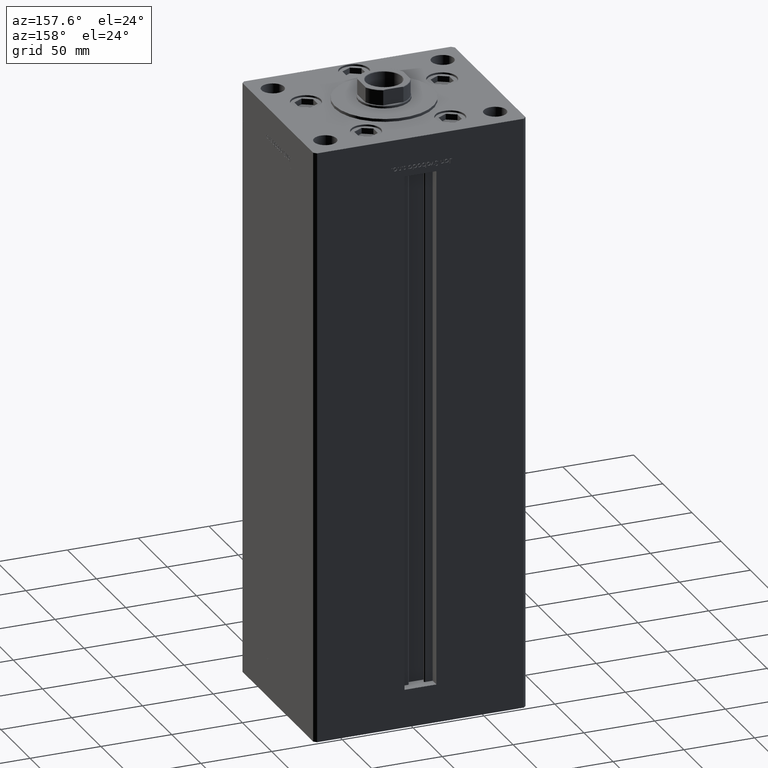
[diagram: clean part render]
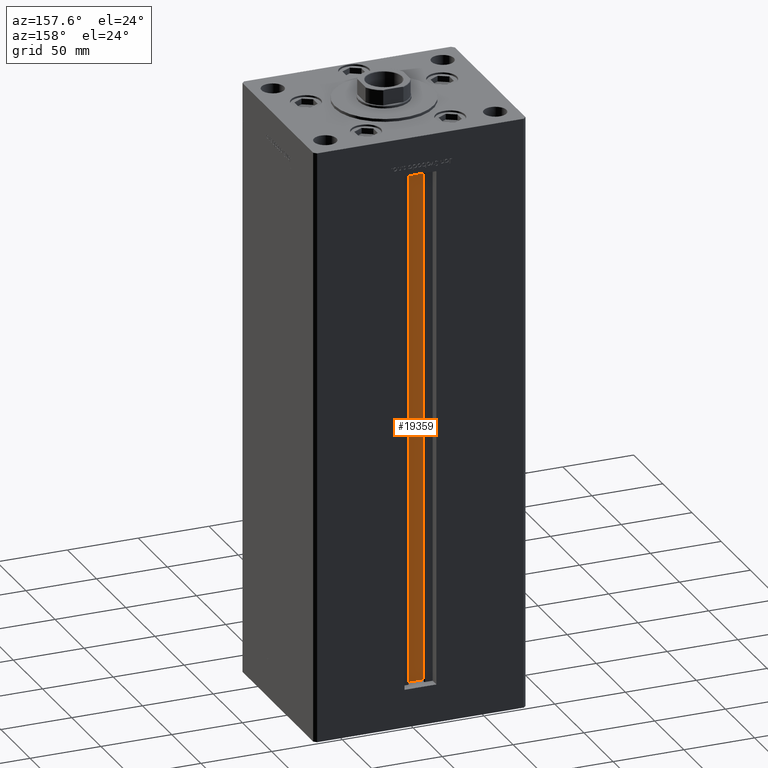
[diagram: same view with one face highlighted and labeled with its STEP entity id]
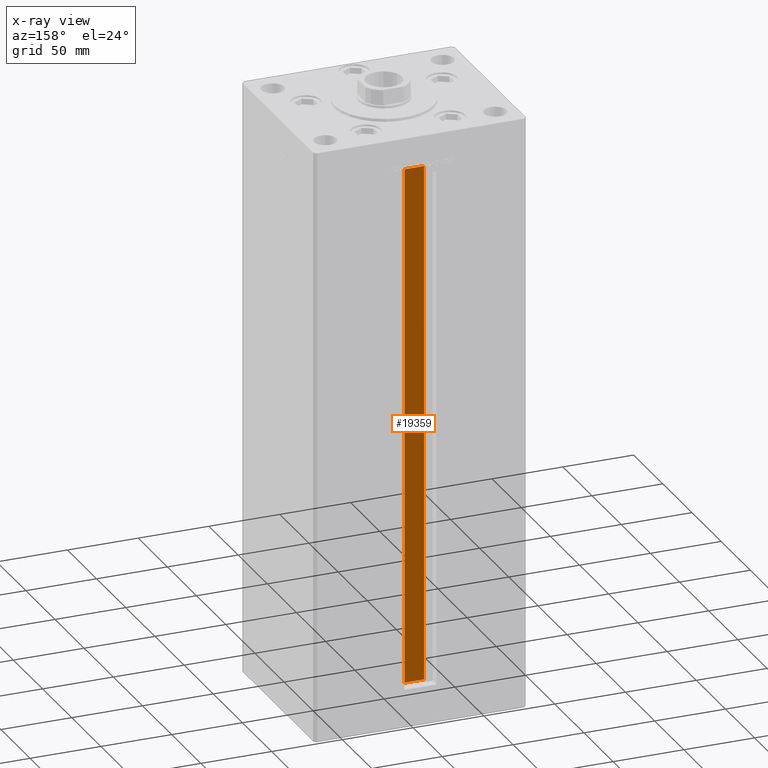
[diagram: x-ray of the same camera — body ghosted, the highlighted face saturated]
A machine part, auxiliary view. The second image highlights one B-rep face of the part: STEP entity #19359.
The next image is the same camera in x-ray: the body ghosted, the highlighted face saturated — about 0% of this face is hidden behind the body in this view.
In plain terms, the highlighted planar face has unit normal (0, -1, 0).
Its self-contained STEP definition (entity closure, byte-faithful):
#1022 = CARTESIAN_POINT ( 'NONE',  ( -6.876153656360466826, 51.99999999999986500, 0.000000000000000000 ) ) ;
#2844 = LINE ( 'NONE', #31283, #5815 ) ;
#3039 = VERTEX_POINT ( 'NONE', #48823 ) ;
#5815 = VECTOR ( 'NONE', #47343, 1000.000000000000000 ) ;
#7170 = CARTESIAN_POINT ( 'NONE',  ( 6.876153656360466826, 51.99999999999986500, 367.0000000000000000 ) ) ;
#8133 = FACE_OUTER_BOUND ( 'NONE', #24509, .T. ) ;
#8501 = VERTEX_POINT ( 'NONE', #14889 ) ;
#8834 = LINE ( 'NONE', #24899, #39036 ) ;
#11418 = EDGE_CURVE ( 'NONE', #3039, #8501, #2844, .T. ) ;
#12088 = ORIENTED_EDGE ( 'NONE', *, *, #40818, .T. ) ;
#14889 = CARTESIAN_POINT ( 'NONE',  ( 6.876153656360466826, 51.99999999999986500, 0.000000000000000000 ) ) ;
#15462 = VECTOR ( 'NONE', #32462, 1000.000000000000000 ) ;
#15865 = CARTESIAN_POINT ( 'NONE',  ( 6.876153656360466826, 51.99999999999986500, 0.000000000000000000 ) ) ;
#16472 = VECTOR ( 'NONE', #40536, 1000.000000000000000 ) ;
#19359 = ADVANCED_FACE ( 'NONE', ( #8133 ), #48947, .F. ) ;
#20750 = DIRECTION ( 'NONE',  ( 0.000000000000000000, 0.000000000000000000, -1.000000000000000000 ) ) ;
#24509 = EDGE_LOOP ( 'NONE', ( #33242, #37497, #12088, #43727 ) ) ;
#24899 = CARTESIAN_POINT ( 'NONE',  ( 0.000000000000000000, 51.99999999999986500, 367.0000000000000000 ) ) ;
#31283 = CARTESIAN_POINT ( 'NONE',  ( 6.876153656360466826, 51.99999999999986500, 0.000000000000000000 ) ) ;
#32462 = DIRECTION ( 'NONE',  ( -0.000000000000000000, -0.000000000000000000, 1.000000000000000000 ) ) ;
#33242 = ORIENTED_EDGE ( 'NONE', *, *, #34766, .F. ) ;
#33309 = VERTEX_POINT ( 'NONE', #34746 ) ;
#34502 = AXIS2_PLACEMENT_3D ( 'NONE', #49208, #36316, #20750 ) ;
#34746 = CARTESIAN_POINT ( 'NONE',  ( -6.876153656360466826, 51.99999999999986500, 367.0000000000000000 ) ) ;
#34766 = EDGE_CURVE ( 'NONE', #8501, #47255, #44075, .T. ) ;
#35905 = EDGE_CURVE ( 'NONE', #47255, #33309, #8834, .T. ) ;
#36316 = DIRECTION ( 'NONE',  ( 0.000000000000000000, -1.000000000000000000, -0.000000000000000000 ) ) ;
#37497 = ORIENTED_EDGE ( 'NONE', *, *, #11418, .F. ) ;
#39036 = VECTOR ( 'NONE', #41488, 1000.000000000000000 ) ;
#40536 = DIRECTION ( 'NONE',  ( -0.000000000000000000, -0.000000000000000000, 1.000000000000000000 ) ) ;
#40818 = EDGE_CURVE ( 'NONE', #3039, #33309, #45269, .T. ) ;
#41488 = DIRECTION ( 'NONE',  ( -1.000000000000000000, 0.000000000000000000, 0.000000000000000000 ) ) ;
#43727 = ORIENTED_EDGE ( 'NONE', *, *, #35905, .F. ) ;
#44075 = LINE ( 'NONE', #15865, #15462 ) ;
#45269 = LINE ( 'NONE', #1022, #16472 ) ;
#47255 = VERTEX_POINT ( 'NONE', #7170 ) ;
#47343 = DIRECTION ( 'NONE',  ( 1.000000000000000000, -0.000000000000000000, -0.000000000000000000 ) ) ;
#48823 = CARTESIAN_POINT ( 'NONE',  ( -6.876153656360466826, 51.99999999999986500, 0.000000000000000000 ) ) ;
#48947 = PLANE ( 'NONE',  #34502 ) ;
#49208 = CARTESIAN_POINT ( 'NONE',  ( 6.876153656360466826, 51.99999999999986500, 0.000000000000000000 ) ) ;